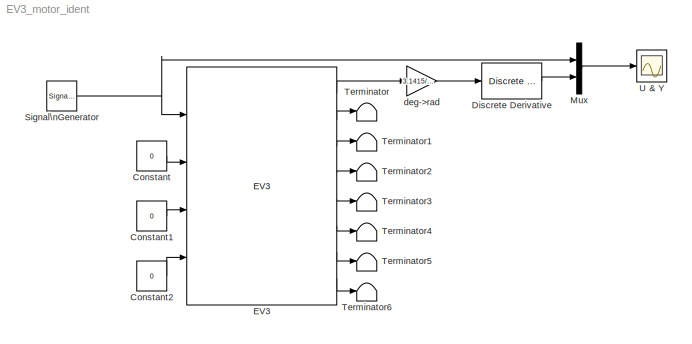
MODEL EV3_motor_ident
KIND model
CONFIG InitFcn = init_ident
BLOCK [Constant] Constant
  SID = 1
  SampleTime = 0.01
  Value = 0
BLOCK [Constant] Constant1
  SID = 2
  SampleTime = 0.01
  Value = 0
BLOCK [Constant] Constant2
  SID = 3
  SampleTime = 0.01
  Value = 0
BLOCK [Reference] Discrete Derivative  REF=simulink/Discrete/Discrete Derivative
  DoSatur = off
  ICPrevScaledInput = 0.0
  InputProcessing = Elements as channels (sample based)
  LockScale = off
  OutDataType = fixdt(1, 16)
  OutDataTypeStr = Inherit: Inherit via internal rule
  OutMax = []
  OutMin = []
  OutScaling = 2^-10
  OutputDataTypeScalingMode = Inherit via internal rule
  Ports = [1, 1]
  RndMeth = Floor
  SID = 16
  SourceBlock = simulink/Discrete/Discrete Derivative
  SourceProductBaseCode = SL
  SourceProductName = Simulink
  SourceType = Discrete Derivative
  gainval = 1.0
BLOCK [Reference] EV3  REF=rpi_blkst/EV3  (lib defined in mdl_5f9edbe601a8, slx_830431f926a7)
  Ports = [4, 8]
  SID = 5
  SourceBlock = rpi_blkst/EV3
  SourceProductName = RPI Blockset
  SourceType = LEGO EV3
  rpi_mask_Ts = Te
BLOCK [Mux] Mux
  DisplayOption = bar
  Inputs = 2
  Ports = [2, 1]
  SID = 15
BLOCK [SignalGenerator] Signal\nGenerator
  Amplitude = 50
  Frequency = 0.5
  Ports = [0, 1]
  SID = 14
  WaveForm = square
BLOCK [Terminator] Terminator
  SID = 6
BLOCK [Terminator] Terminator1
  SID = 7
BLOCK [Terminator] Terminator2
  SID = 8
BLOCK [Terminator] Terminator3
  SID = 9
BLOCK [Terminator] Terminator4
  SID = 10
BLOCK [Terminator] Terminator5
  SID = 11
BLOCK [Terminator] Terminator6
  SID = 12
BLOCK [Scope] U & Y
  Floating = off
  NumInputPorts = 1
  Ports = [1]
  SID = 4
  ScopeSpecificationString = Simulink.scopes.TimeScopeBlockCfg('CurrentConfiguration', extmgr.ConfigurationSet(extmgr.Configuration('Core','General UI',true),extmgr.Configuration('Core','Source UI',true),extmgr.Configuration('Sources','WiredSimulink',true,'DataLogging',true,'DataLoggingVariableName','small_motor','DataLoggingSaveFormat','Array','DataLoggingLimitDataPoints',true,'DataLoggingDecimation','1','DataLoggingDecimate...<+1662ch>
BLOCK [Gain] deg->rad
  Gain = 3.1415/180
  OutDataTypeStr = Inherit: Inherit via internal rule
  ParamDataTypeStr = Inherit: Inherit via internal rule
  SID = 13
  SampleTime = Te
  SaturateOnIntegerOverflow = off
LINE Constant1:1 -> EV3:3
LINE Constant2:1 -> EV3:4
LINE Constant:1 -> EV3:2
LINE Discrete Derivative:1 -> Mux:2
LINE EV3:1 -> deg->rad:1
LINE EV3:2 -> Terminator:1
LINE EV3:3 -> Terminator1:1
LINE EV3:4 -> Terminator2:1
LINE EV3:5 -> Terminator3:1
LINE EV3:6 -> Terminator4:1
LINE EV3:7 -> Terminator5:1
LINE EV3:8 -> Terminator6:1
LINE Mux:1 -> U & Y:1
NET Signal\nGenerator:1 -> EV3:1, Mux:1
LINE deg->rad:1 -> Discrete Derivative:1
note: NET lines group one-source signal fan-out (src -> all destinations, sorted); 1:1 wires keep LINE
